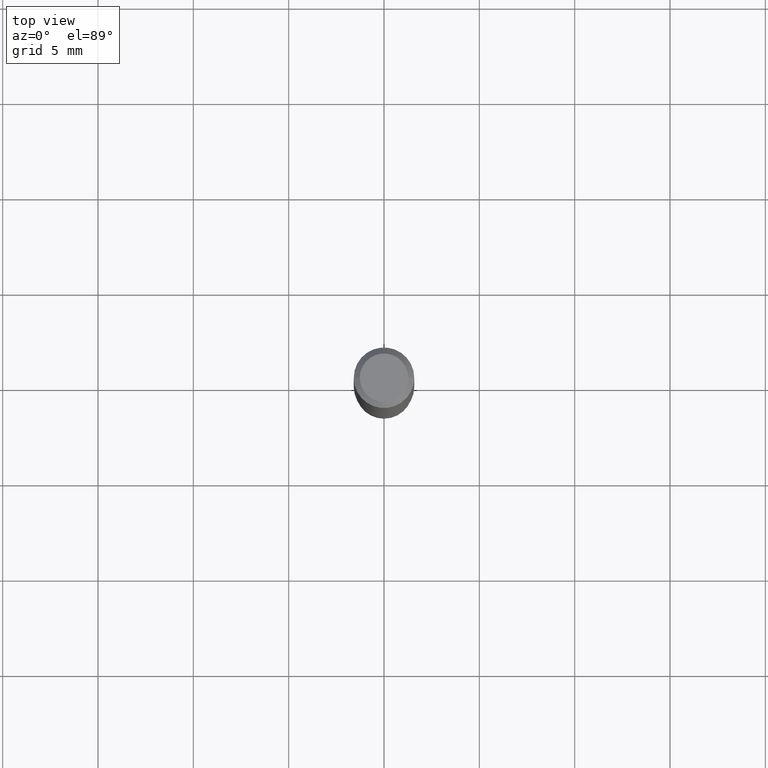
[diagram: clean part render]
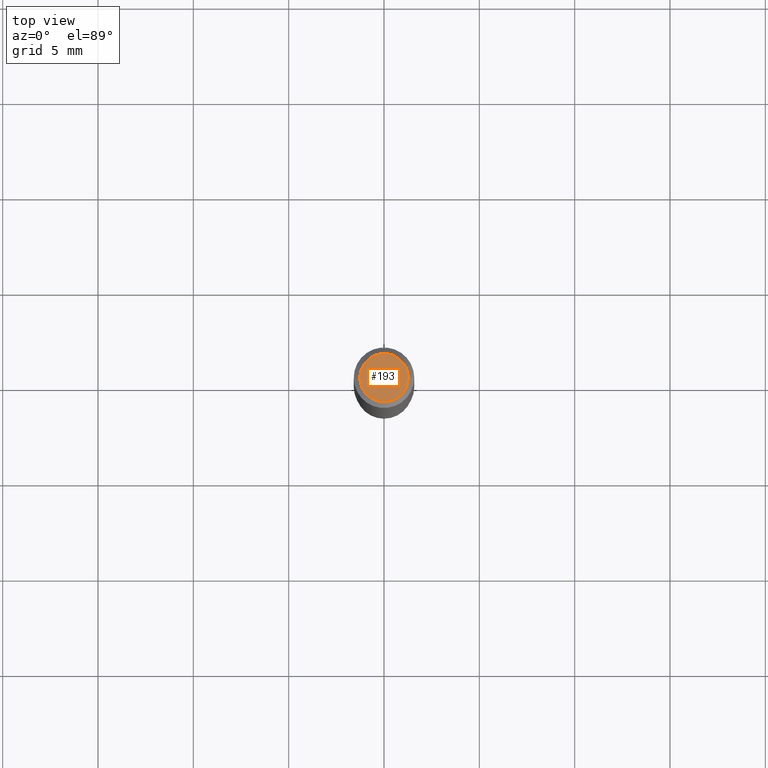
[diagram: same view with one face highlighted and labeled with its STEP entity id]
A machine part, top view. The second image highlights one B-rep face of the part: STEP entity #193.
In plain terms, the highlighted planar face has unit normal (0, -0, -1).
Its self-contained STEP definition (entity closure, byte-faithful):
#8 = CARTESIAN_POINT ( 'NONE',  ( 3.893286209682126177E-47, -5.558580879666067980E-33, -1.592040838891559689E-18 ) ) ;
#9 = EDGE_CURVE ( 'NONE', #143, #434, #209, .T. ) ;
#11 = CARTESIAN_POINT ( 'NONE',  ( -0.04999999999999999584, 3.709698922520826725E-16, -1.592040838894077649E-18 ) ) ;
#13 = PLANE ( 'NONE',  #93 ) ;
#93 = AXIS2_PLACEMENT_3D ( 'NONE', #192, #189, #384 ) ;
#111 = DIRECTION ( 'NONE',  ( -2.445468806185136597E-29, 3.491481338843145583E-15, 1.000000000000000000 ) ) ;
#121 = AXIS2_PLACEMENT_3D ( 'NONE', #472, #126, #275 ) ;
#126 = DIRECTION ( 'NONE',  ( -2.445468806185136597E-29, 3.491481338843145583E-15, 1.000000000000000000 ) ) ;
#137 = ORIENTED_EDGE ( 'NONE', *, *, #426, .T. ) ;
#143 = VERTEX_POINT ( 'NONE', #11 ) ;
#178 = AXIS2_PLACEMENT_3D ( 'NONE', #8, #111, #182 ) ;
#182 = DIRECTION ( 'NONE',  ( 1.000000000000000000, -6.982962677686265922E-15, 4.875957971899673662E-29 ) ) ;
#189 = DIRECTION ( 'NONE',  ( 2.438088387897960049E-29, -3.491481338843145188E-15, -1.000000000000000000 ) ) ;
#192 = CARTESIAN_POINT ( 'NONE',  ( 1.946643104841063088E-47, -2.779290439833033990E-33, -7.960204194457798443E-19 ) ) ;
#193 = ADVANCED_FACE ( 'NONE', ( #195 ), #13, .F. ) ;
#195 = FACE_OUTER_BOUND ( 'NONE', #299, .T. ) ;
#209 = CIRCLE ( 'NONE', #178, 0.04999999999999999584 ) ;
#259 = CIRCLE ( 'NONE', #121, 0.04999999999999999584 ) ;
#275 = DIRECTION ( 'NONE',  ( 1.000000000000000000, -6.982962677686265922E-15, 4.875957971899673662E-29 ) ) ;
#293 = ORIENTED_EDGE ( 'NONE', *, *, #9, .T. ) ;
#299 = EDGE_LOOP ( 'NONE', ( #293, #137 ) ) ;
#384 = DIRECTION ( 'NONE',  ( -1.000000000000000000, 6.982962677686265922E-15, -4.876176775795935793E-29 ) ) ;
#426 = EDGE_CURVE ( 'NONE', #434, #143, #259, .T. ) ;
#434 = VERTEX_POINT ( 'NONE', #481 ) ;
#472 = CARTESIAN_POINT ( 'NONE',  ( 3.893286209682126177E-47, -5.558580879666067980E-33, -1.592040838891559689E-18 ) ) ;
#481 = CARTESIAN_POINT ( 'NONE',  ( 0.04999999999999999584, -4.077247707424184212E-16, -1.592040838888913461E-18 ) ) ;